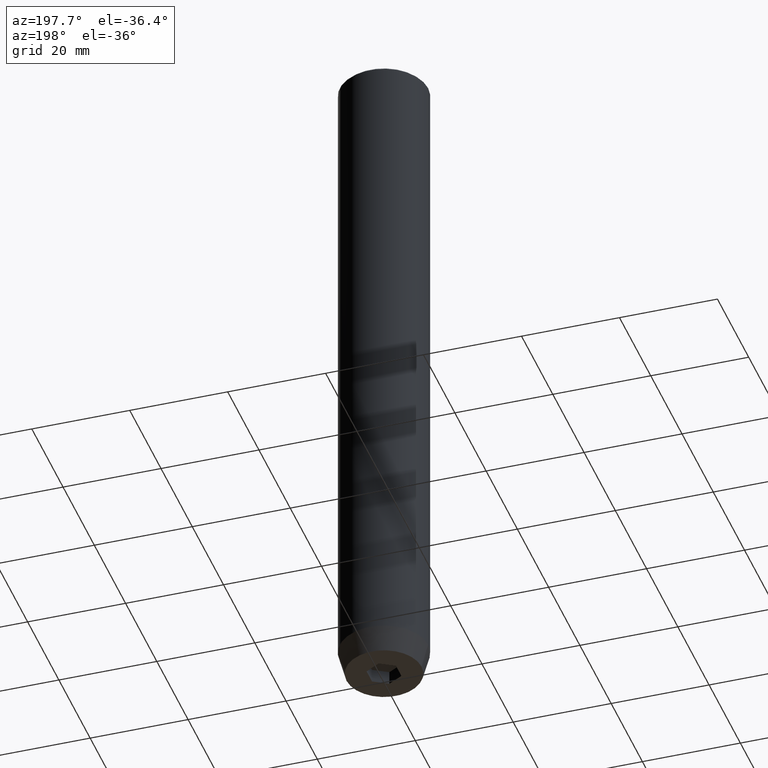
[diagram: clean part render]
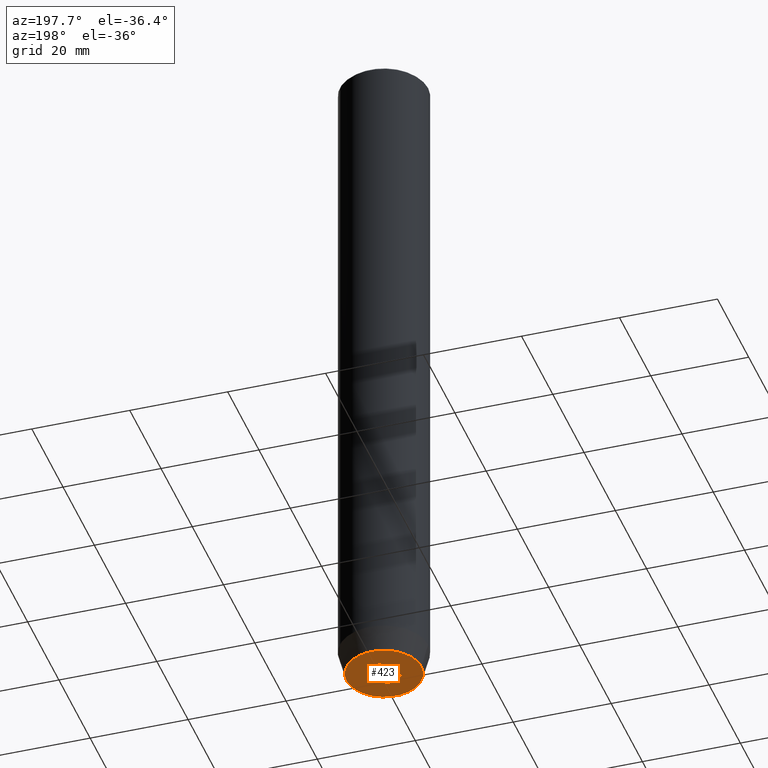
[diagram: same view with one face highlighted and labeled with its STEP entity id]
A machine part, auxiliary view. The second image highlights one B-rep face of the part: STEP entity #423.
In plain terms, the highlighted planar face has unit normal (0, 0, -1).
Its self-contained STEP definition (entity closure, byte-faithful):
#1 = EDGE_LOOP ( 'NONE', ( #64, #183 ) ) ;
#5 = CARTESIAN_POINT ( 'NONE',  ( 3.000000000000000000, 1.732050807568876527, -140.0000000000000000 ) ) ;
#16 = FACE_OUTER_BOUND ( 'NONE', #1, .T. ) ;
#19 = DIRECTION ( 'NONE',  ( -1.000000000000000000, 0.000000000000000000, -0.000000000000000000 ) ) ;
#24 = CIRCLE ( 'NONE', #545, 7.660254037844381969 ) ;
#28 = CARTESIAN_POINT ( 'NONE',  ( 1.500000000000000222, -2.598076211353315568, -140.0000000000000000 ) ) ;
#29 = CARTESIAN_POINT ( 'NONE',  ( 1.500000000000000222, 2.598076211353315568, -140.0000000000000000 ) ) ;
#39 = ORIENTED_EDGE ( 'NONE', *, *, #417, .F. ) ;
#42 = VECTOR ( 'NONE', #406, 1000.000000000000000 ) ;
#44 = CARTESIAN_POINT ( 'NONE',  ( -3.000000000000000444, -7.511572993685800087E-16, -140.0000000000000000 ) ) ;
#58 = EDGE_CURVE ( 'NONE', #383, #87, #251, .T. ) ;
#63 = DIRECTION ( 'NONE',  ( 0.8660254037844387076, 0.4999999999999999445, 0.000000000000000000 ) ) ;
#64 = ORIENTED_EDGE ( 'NONE', *, *, #266, .F. ) ;
#79 = VECTOR ( 'NONE', #462, 1000.000000000000000 ) ;
#85 = EDGE_CURVE ( 'NONE', #364, #243, #442, .T. ) ;
#87 = VERTEX_POINT ( 'NONE', #352 ) ;
#93 = AXIS2_PLACEMENT_3D ( 'NONE', #240, #430, #19 ) ;
#94 = CARTESIAN_POINT ( 'NONE',  ( -3.000000000000000888, 1.732050807568876527, -140.0000000000000000 ) ) ;
#96 = CARTESIAN_POINT ( 'NONE',  ( -7.660254037844381969, 1.020146339021394469E-15, -140.0000000000000000 ) ) ;
#100 = ORIENTED_EDGE ( 'NONE', *, *, #226, .F. ) ;
#104 = LINE ( 'NONE', #279, #408 ) ;
#108 = CIRCLE ( 'NONE', #463, 7.660254037844381969 ) ;
#138 = ORIENTED_EDGE ( 'NONE', *, *, #381, .F. ) ;
#148 = CARTESIAN_POINT ( 'NONE',  ( 0.000000000000000000, 0.000000000000000000, -140.0000000000000000 ) ) ;
#153 = CARTESIAN_POINT ( 'NONE',  ( 3.000000000000000000, -1.732050807568876527, -140.0000000000000000 ) ) ;
#172 = ORIENTED_EDGE ( 'NONE', *, *, #85, .F. ) ;
#183 = ORIENTED_EDGE ( 'NONE', *, *, #379, .F. ) ;
#192 = EDGE_CURVE ( 'NONE', #243, #383, #265, .T. ) ;
#194 = VECTOR ( 'NONE', #529, 1000.000000000000000 ) ;
#196 = PLANE ( 'NONE',  #93 ) ;
#200 = VERTEX_POINT ( 'NONE', #96 ) ;
#226 = EDGE_CURVE ( 'NONE', #260, #246, #551, .T. ) ;
#240 = CARTESIAN_POINT ( 'NONE',  ( 0.000000000000000000, 7.660254037844381969, -140.0000000000000000 ) ) ;
#243 = VERTEX_POINT ( 'NONE', #5 ) ;
#246 = VERTEX_POINT ( 'NONE', #94 ) ;
#251 = LINE ( 'NONE', #28, #42 ) ;
#255 = ORIENTED_EDGE ( 'NONE', *, *, #58, .F. ) ;
#260 = VERTEX_POINT ( 'NONE', #378 ) ;
#265 = LINE ( 'NONE', #272, #334 ) ;
#266 = EDGE_CURVE ( 'NONE', #578, #200, #108, .T. ) ;
#272 = CARTESIAN_POINT ( 'NONE',  ( 3.000000000000000000, 0.000000000000000000, -140.0000000000000000 ) ) ;
#279 = CARTESIAN_POINT ( 'NONE',  ( -1.500000000000000666, -2.598076211353316456, -140.0000000000000000 ) ) ;
#280 = LINE ( 'NONE', #469, #296 ) ;
#296 = VECTOR ( 'NONE', #63, 999.9999999999998863 ) ;
#306 = ORIENTED_EDGE ( 'NONE', *, *, #192, .F. ) ;
#312 = CARTESIAN_POINT ( 'NONE',  ( 0.000000000000000000, 0.000000000000000000, -140.0000000000000000 ) ) ;
#334 = VECTOR ( 'NONE', #493, 1000.000000000000000 ) ;
#352 = CARTESIAN_POINT ( 'NONE',  ( -2.168404344971008868E-16, -3.464101615137754830, -140.0000000000000000 ) ) ;
#364 = VERTEX_POINT ( 'NONE', #561 ) ;
#378 = CARTESIAN_POINT ( 'NONE',  ( -3.000000000000000000, -1.732050807568877859, -140.0000000000000000 ) ) ;
#379 = EDGE_CURVE ( 'NONE', #200, #578, #24, .T. ) ;
#381 = EDGE_CURVE ( 'NONE', #87, #260, #104, .T. ) ;
#383 = VERTEX_POINT ( 'NONE', #153 ) ;
#384 = DIRECTION ( 'NONE',  ( 1.000000000000000000, 0.000000000000000000, 0.000000000000000000 ) ) ;
#406 = DIRECTION ( 'NONE',  ( -0.8660254037844385966, -0.5000000000000001110, 0.000000000000000000 ) ) ;
#408 = VECTOR ( 'NONE', #468, 1000.000000000000000 ) ;
#417 = EDGE_CURVE ( 'NONE', #246, #364, #280, .T. ) ;
#418 = EDGE_LOOP ( 'NONE', ( #39, #100, #138, #255, #306, #172 ) ) ;
#423 = ADVANCED_FACE ( 'NONE', ( #427, #16 ), #196, .T. ) ;
#427 = FACE_BOUND ( 'NONE', #418, .T. ) ;
#430 = DIRECTION ( 'NONE',  ( 0.000000000000000000, 0.000000000000000000, -1.000000000000000000 ) ) ;
#442 = LINE ( 'NONE', #29, #194 ) ;
#462 = DIRECTION ( 'NONE',  ( -2.503857664561932376E-16, 1.000000000000000000, 0.000000000000000000 ) ) ;
#463 = AXIS2_PLACEMENT_3D ( 'NONE', #312, #491, #587 ) ;
#468 = DIRECTION ( 'NONE',  ( -0.8660254037844385966, 0.5000000000000001110, 0.000000000000000000 ) ) ;
#469 = CARTESIAN_POINT ( 'NONE',  ( -1.499999999999999556, 2.598076211353316012, -140.0000000000000000 ) ) ;
#480 = CARTESIAN_POINT ( 'NONE',  ( 7.660254037844381969, 0.000000000000000000, -140.0000000000000000 ) ) ;
#491 = DIRECTION ( 'NONE',  ( -0.000000000000000000, -0.000000000000000000, 1.000000000000000000 ) ) ;
#493 = DIRECTION ( 'NONE',  ( 0.000000000000000000, -1.000000000000000000, 0.000000000000000000 ) ) ;
#513 = DIRECTION ( 'NONE',  ( -0.000000000000000000, -0.000000000000000000, 1.000000000000000000 ) ) ;
#529 = DIRECTION ( 'NONE',  ( 0.8660254037844385966, -0.5000000000000001110, 0.000000000000000000 ) ) ;
#545 = AXIS2_PLACEMENT_3D ( 'NONE', #148, #513, #384 ) ;
#551 = LINE ( 'NONE', #44, #79 ) ;
#561 = CARTESIAN_POINT ( 'NONE',  ( -2.168404344971008868E-16, 3.464101615137753942, -140.0000000000000000 ) ) ;
#578 = VERTEX_POINT ( 'NONE', #480 ) ;
#587 = DIRECTION ( 'NONE',  ( 1.000000000000000000, 0.000000000000000000, 0.000000000000000000 ) ) ;